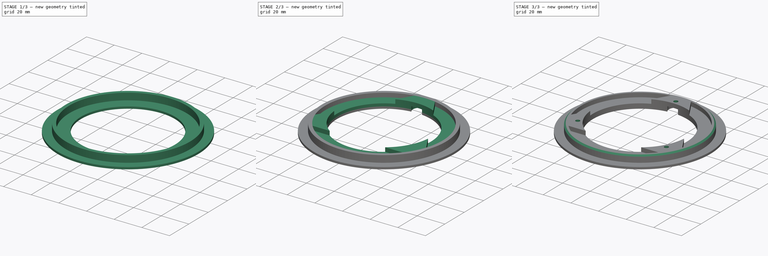
[diagram: build sequence overview — one tinted view per stage of 3, left to right]
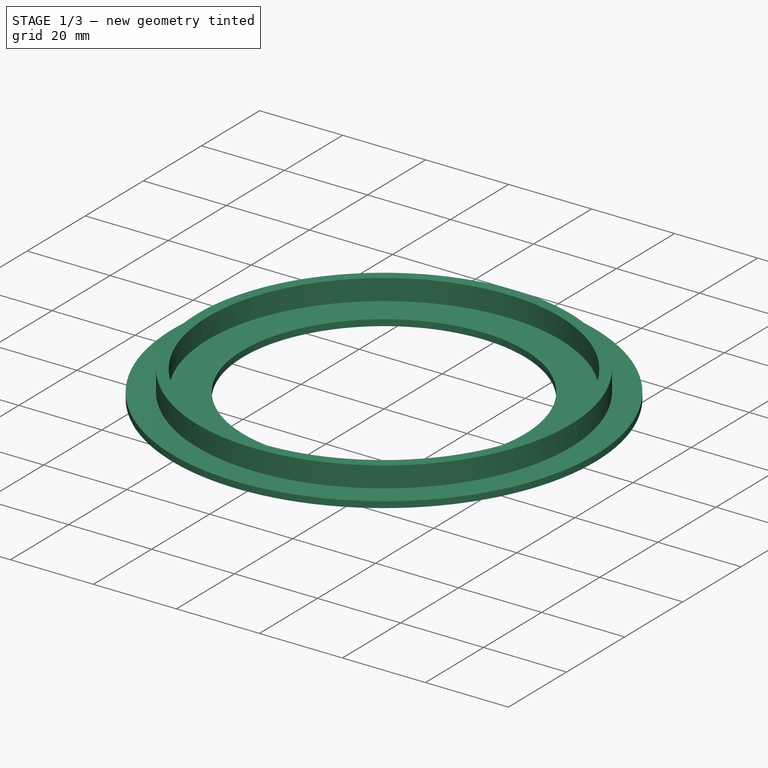
[diagram: stage 1 of 3 — iso view after this stage's code; geometry added in this stage tinted green]
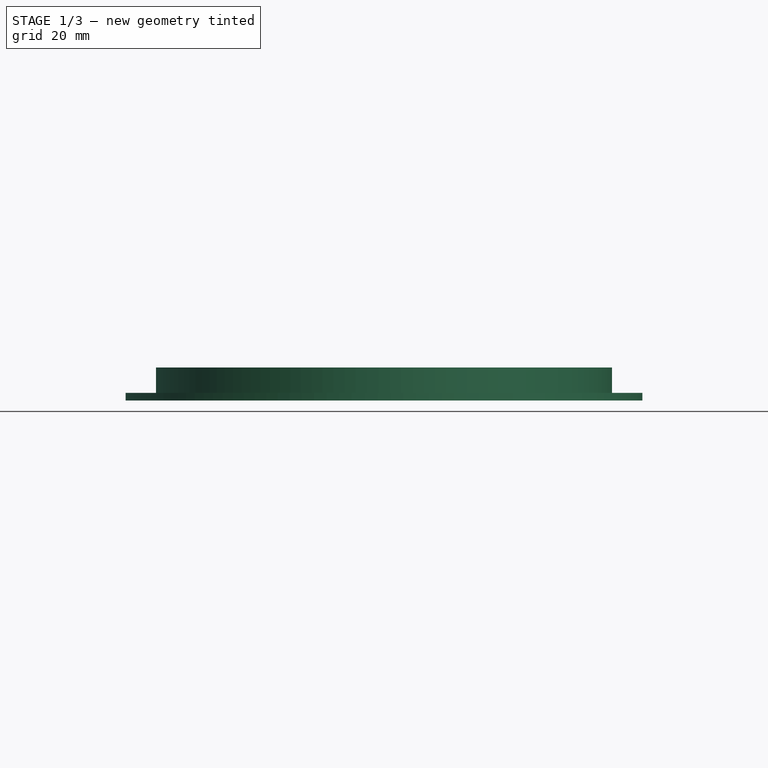
[diagram: stage 1 of 3 — front view after this stage's code; geometry added in this stage tinted green]
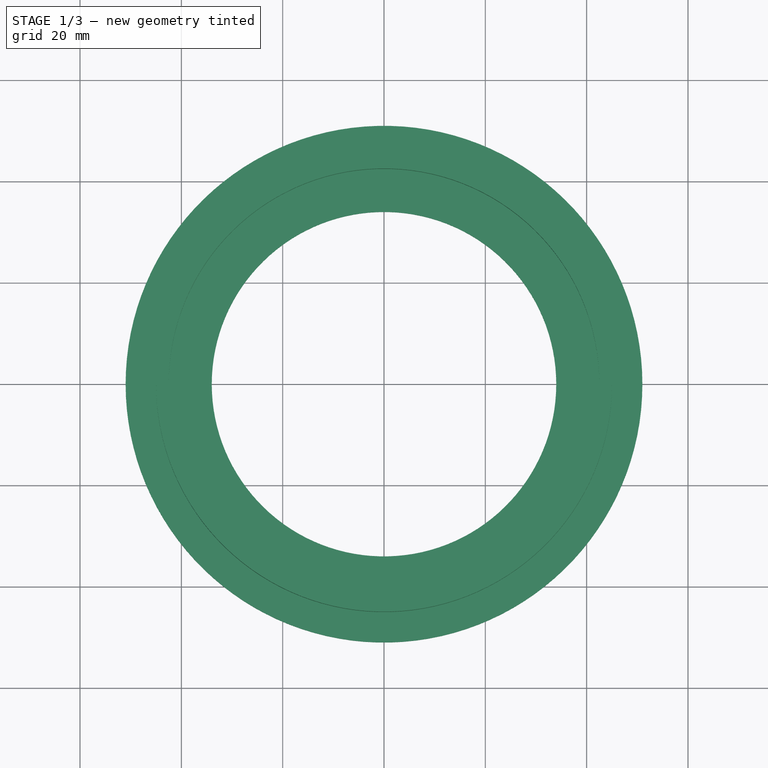
[diagram: stage 1 of 3 — top view after this stage's code; geometry added in this stage tinted green]
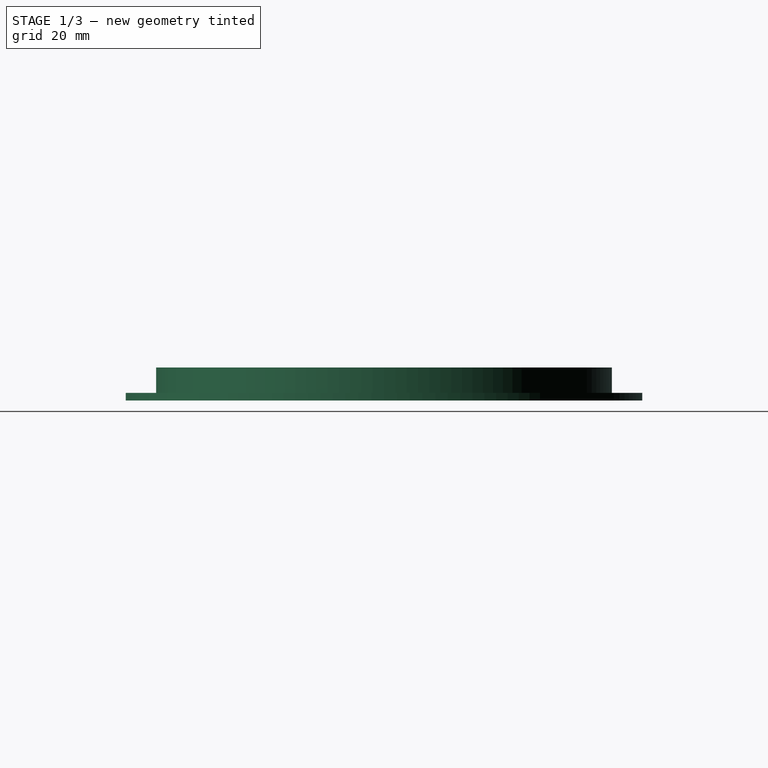
[diagram: stage 1 of 3 — right view after this stage's code; geometry added in this stage tinted green]
FCSTD DOCUMENT  (FreeCAD 0.19R24276 (Git))
Label: Mobile_connection_bottom_part_N1_add_V1
License: All rights reserved
LicenseURL: http://en.wikipedia.org/wiki/All_rights_reserved
objects: Sketcher::SketchObject×6, PartDesign::Pad×4, PartDesign::Pocket×2, PartDesign::Chamfer×1, PartDesign::Body×1
note: 21 computed .brp shape members not serialized (recipe doc carries the construction recipe); baked Part::Feature solids carry a one-line shape summary decoded from their .brp

FEATURE [Sketcher::SketchObject] Sketch
  FullyConstrained = true
  MapMode = 5
  Support = -> [XY_Plane]
  sketch-geometry (2):
    g0: Circle CenterX=0 CenterY=0 CenterZ=0 NormalX=0 NormalY=0 NormalZ=1 AngleXU=0 Radius=34
    g1: Circle CenterX=0 CenterY=0 CenterZ=0 NormalX=0 NormalY=0 NormalZ=1 AngleXU=0 Radius=51
  constraints (4):
    c: Coincident(g0,g-1)
    c: Diameter(g0) = 68
    c: Coincident(g1,g0)
    c: Diameter(g1) = 102
FEATURE [PartDesign::Pad] Pad
  Direction = (1,1,1)
  Length = 1.5
  Length2 = 100
  Profile = -> Sketch
  Type = 0
FEATURE [Sketcher::SketchObject] Sketch001
  FullyConstrained = true
  MapMode = 5
  Placement = pos=(0,0,1.5) rot=(0,0,1;0rad)
  Support = -> [Pad]
  sketch-geometry (2):
    g0: Circle CenterX=0 CenterY=0 CenterZ=0 NormalX=0 NormalY=0 NormalZ=1 AngleXU=0 Radius=45
    g1: Circle CenterX=0 CenterY=0 CenterZ=0 NormalX=0 NormalY=0 NormalZ=1 AngleXU=0 Radius=42.5
  constraints (4):
    c: Coincident(g0,g-1)
    c: Diameter(g0) = 90
    c: Coincident(g1,g0)
    c: Diameter(g1) = 85
FEATURE [PartDesign::Pad] Pad001
  BaseFeature = -> Pad
  Direction = (1,1,1)
  Length = 5
  Length2 = 100
  Profile = -> Sketch001
  Type = 0
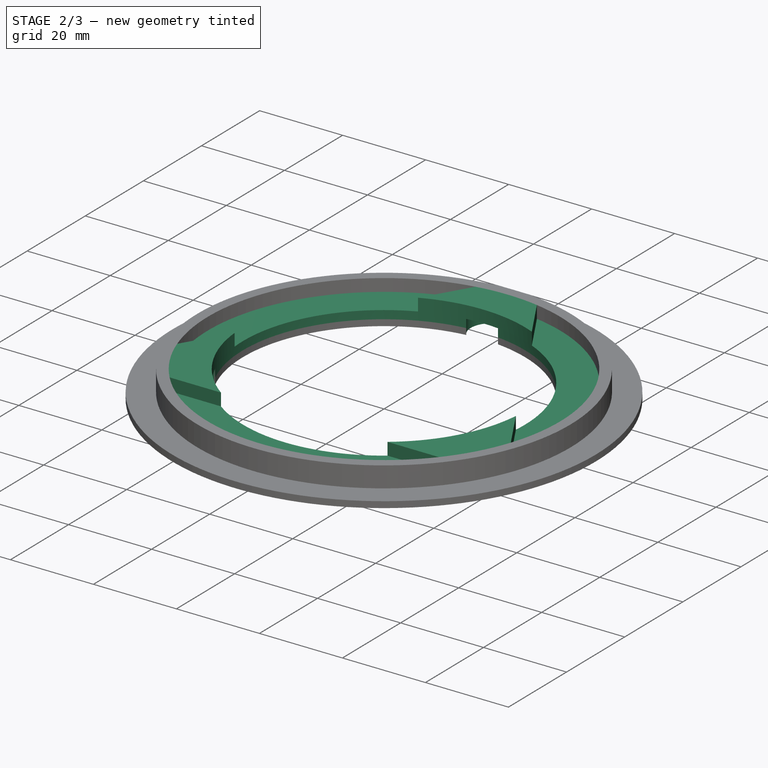
[diagram: stage 2 of 3 — iso view after this stage's code; geometry added in this stage tinted green]
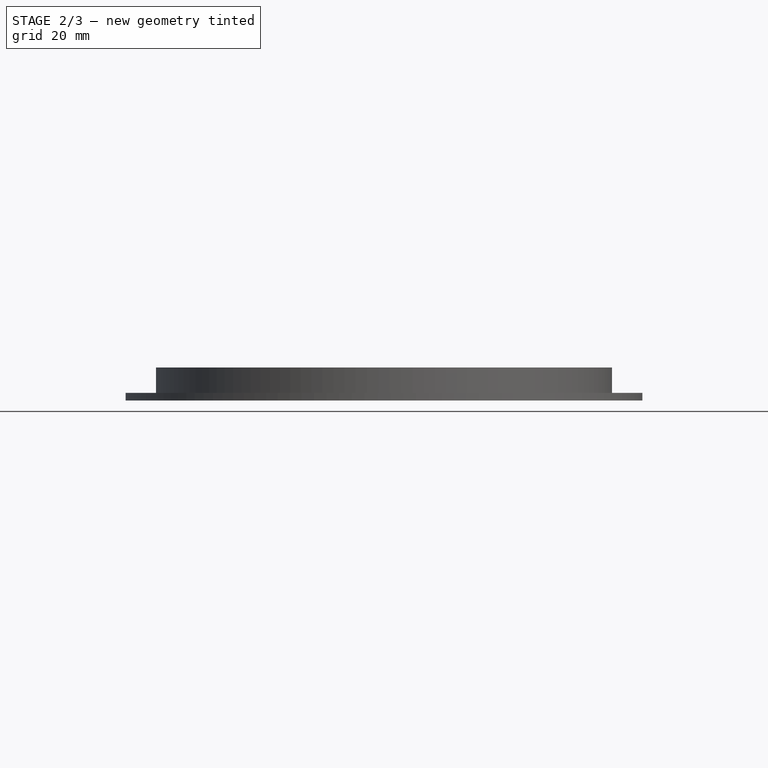
[diagram: stage 2 of 3 — front view after this stage's code; geometry added in this stage tinted green]
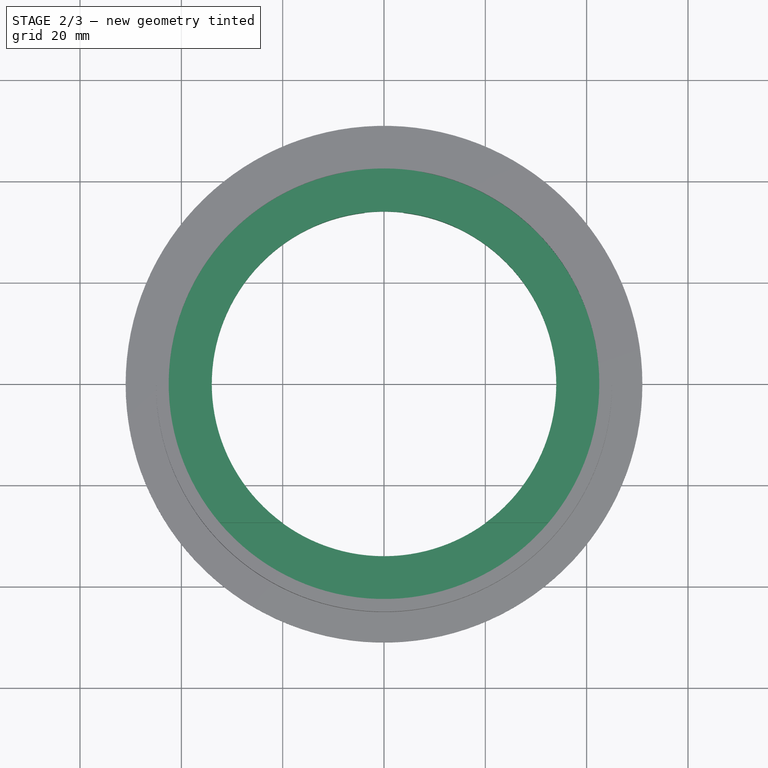
[diagram: stage 2 of 3 — top view after this stage's code; geometry added in this stage tinted green]
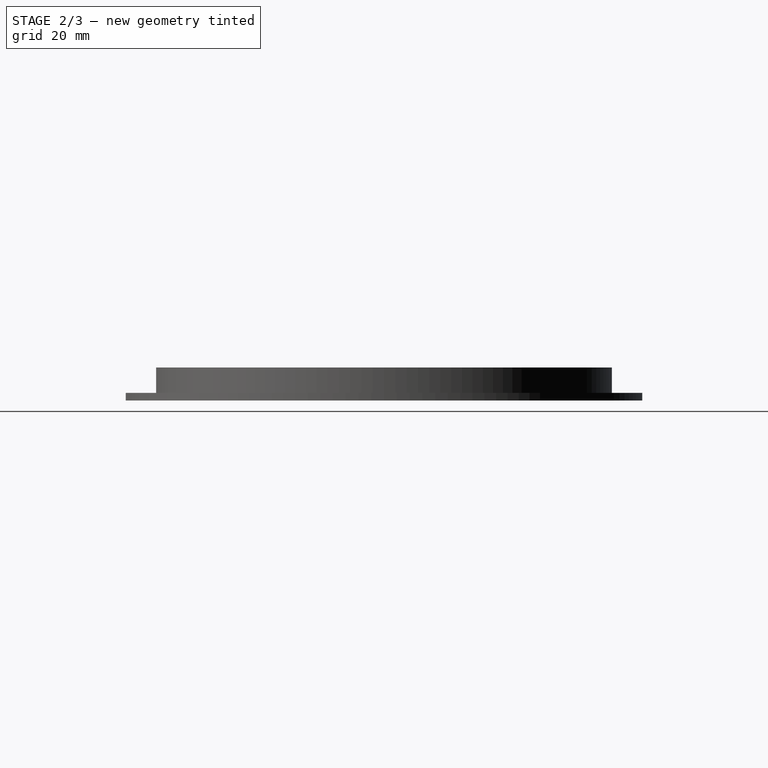
[diagram: stage 2 of 3 — right view after this stage's code; geometry added in this stage tinted green]
FEATURE [Sketcher::SketchObject] Sketch002
  FullyConstrained = true
  MapMode = 5
  Placement = pos=(0,0,1.5) rot=(0,0,1;0rad)
  Support = -> [Pad001]
  sketch-geometry (2):
    g0: Circle CenterX=0 CenterY=0 CenterZ=0 NormalX=0 NormalY=0 NormalZ=1 AngleXU=0 Radius=34
    g1: Circle CenterX=0 CenterY=0 CenterZ=0 NormalX=0 NormalY=0 NormalZ=1 AngleXU=0 Radius=43
  constraints (4):
    c: Coincident(g0,g-1)
    c: Diameter(g0) = 68
    c: Coincident(g1,g0)
    c: Diameter(g1) = 86
FEATURE [PartDesign::Pad] Pad002
  BaseFeature = -> Pad001
  Direction = (1,1,1)
  Length = 2
  Length2 = 100
  Profile = -> Sketch002
  Type = 0
FEATURE [Sketcher::SketchObject] Sketch003
  FullyConstrained = true
  MapMode = 5
  Placement = pos=(0,0,3.5) rot=(0,0,1;0rad)
  Support = -> [Pad002]
  sketch-geometry (7):
    g0: LineSegment StartX=32.0429 StartY=-18.5 StartZ=0 EndX=3.52287e-11 EndY=37 EndZ=0
    g1: LineSegment StartX=3.52287e-11 StartY=37 StartZ=0 EndX=-32.0429 EndY=-18.5 EndZ=0
    g2: LineSegment StartX=-32.0429 StartY=-18.5 StartZ=0 EndX=32.0429 EndY=-18.5 EndZ=0
    g3: Circle CenterX=0 CenterY=0 CenterZ=0 NormalX=0 NormalY=0 NormalZ=1 AngleXU=0 Radius=37
    g4: Circle CenterX=3.52287e-11 CenterY=37 CenterZ=0 NormalX=0 NormalY=0 NormalZ=1 AngleXU=0 Radius=1.5
    g5: Circle CenterX=32.0429 CenterY=-18.5 CenterZ=0 NormalX=0 NormalY=0 NormalZ=1 AngleXU=0 Radius=1.5
    g6: Circle CenterX=-32.0429 CenterY=-18.5 CenterZ=0 NormalX=0 NormalY=0 NormalZ=1 AngleXU=0 Radius=1.5
  constraints (17):
    c: Coincident(g0,g1)
    c: Coincident(g1,g2)
    c: Coincident(g2,g0)
    c: Equal(g0,g1)
    c: Equal(g0,g2)
    c: PointOnObject(g0,g3)
    c: PointOnObject(g1,g3)
    c: PointOnObject(g2,g3)
    c: Parallel(g2,g-1)
    c: Coincident(g3,g-1)
    c: Diameter(g3) = 74
    c: Coincident(g4,g0)
    c: Coincident(g5,g0)
    c: Coincident(g6,g1)
    c: Diameter(g6) = 3
    c: Equal(g6,g4)
    c: Equal(g6,g5)
FEATURE [Sketcher::SketchObject] Sketch004
  FullyConstrained = true
  MapMode = 5
  Placement = pos=(0,0,0) rot=(1,0,0;3.14159rad)
  sketch-geometry (7):
    g0: LineSegment StartX=1.08358e-11 StartY=-37 StartZ=0 EndX=32.0429 EndY=18.5 EndZ=0
    g1: LineSegment StartX=32.0429 StartY=18.5 StartZ=0 EndX=-32.0429 EndY=18.5 EndZ=0
    g2: LineSegment StartX=-32.0429 StartY=18.5 StartZ=0 EndX=1.08358e-11 EndY=-37 EndZ=0
    g3: Circle CenterX=0 CenterY=0 CenterZ=0 NormalX=0 NormalY=0 NormalZ=1 AngleXU=0 Radius=37
    g4: Circle CenterX=32.0429 CenterY=18.5 CenterZ=0 NormalX=0 NormalY=0 NormalZ=1 AngleXU=0 Radius=5
    g5: Circle CenterX=-32.0429 CenterY=18.5 CenterZ=0 NormalX=0 NormalY=0 NormalZ=1 AngleXU=0 Radius=5
    g6: Circle CenterX=1.08358e-11 CenterY=-37 CenterZ=0 NormalX=0 NormalY=0 NormalZ=1 AngleXU=0 Radius=5
  constraints (17):
    c: Coincident(g0,g1)
    c: Coincident(g1,g2)
    c: Coincident(g2,g0)
    c: Equal(g0,g1)
    c: Equal(g0,g2)
    c: PointOnObject(g0,g3)
    c: PointOnObject(g1,g3)
    c: PointOnObject(g2,g3)
    c: Parallel(g1,g-1)
    c: Coincident(g3,g-1)
    c: Diameter(g3) = 74
    c: Coincident(g4,g0)
    c: Coincident(g5,g1)
    c: Coincident(g6,g0)
    c: Diameter(g4) = 10
    c: Diameter(g6) = 10
    c: Diameter(g5) = 10
FEATURE [PartDesign::Pocket] Pocket001
  BaseFeature = -> Pad002
  Length = 3.5
  Length2 = 100
  Profile = -> Sketch004
  Type = 0
FEATURE [Sketcher::SketchObject] Sketch005
  AttachmentOffset = pos=(0,0,-3) rot=(0,0,1;0rad)
  FullyConstrained = false
  MapMode = 5
  Placement = pos=(0,0,3.5) rot=(0,0,1;0rad)
  Support = -> [Pocket001]
  sketch-geometry (17):
    g0: ArcOfCircle CenterX=0 CenterY=0 CenterZ=0 NormalX=0 NormalY=0 NormalZ=1 AngleXU=0 Radius=34 StartAngle=1.14994 EndAngle=1.98293
    g1: ArcOfCircle CenterX=0 CenterY=0 CenterZ=0 NormalX=0 NormalY=0 NormalZ=1 AngleXU=0 Radius=42.5 StartAngle=3.47095 EndAngle=3.84397
    g2: LineSegment StartX=-32.4407 StartY=-27.4563 StartZ=0 EndX=-20.0537 EndY=-27.4563 EndZ=0
    g3: LineSegment StartX=40.2046 StartY=-13.7784 StartZ=0 EndX=33.8684 EndY=-2.98827 EndZ=0
    g4: LineSegment StartX=-7.26879 StartY=41.8738 StartZ=0 EndX=-13.6193 EndY=31.1531 EndZ=0
    g5: Circle CenterX=0 CenterY=0 CenterZ=0 NormalX=0 NormalY=0 NormalZ=1 AngleXU=0 Radius=55
    g6: ArcOfCircle CenterX=0 CenterY=0 CenterZ=0 NormalX=0 NormalY=0 NormalZ=1 AngleXU=0 Radius=34 StartAngle=3.23069 EndAngle=4.08156
    g7: ArcOfCircle CenterX=0 CenterY=0 CenterZ=0 NormalX=0 NormalY=0 NormalZ=1 AngleXU=0 Radius=34 StartAngle=5.34322 EndAngle=6.19518
    g8: LineSegment StartX=-33.8651 StartY=-3.02517 StartZ=0 EndX=-40.2157 EndY=-13.7459 EndZ=0
    g9: LineSegment StartX=20.0537 StartY=-27.4563 StartZ=0 EndX=32.4407 EndY=-27.4563 EndZ=0
    g10: LineSegment StartX=13.8906 StartY=31.0331 StartZ=0 EndX=7.55444 EndY=41.8232 EndZ=0
    g11: ArcOfCircle CenterX=0 CenterY=0 CenterZ=0 NormalX=0 NormalY=0 NormalZ=1 AngleXU=0 Radius=42.5 StartAngle=5.58081 EndAngle=5.95302
    g12: ArcOfCircle CenterX=0 CenterY=0 CenterZ=0 NormalX=0 NormalY=0 NormalZ=1 AngleXU=0 Radius=42.5 StartAngle=1.3921 EndAngle=1.74267
    g13: LineSegment StartX=-61.1649 StartY=-3 StartZ=0 EndX=-54.9181 EndY=-3 EndZ=0
    g14: Circle CenterX=0 CenterY=0 CenterZ=0 NormalX=0 NormalY=0 NormalZ=1 AngleXU=0 Radius=34
    g15: LineSegment StartX=-33.8674 StartY=-3 StartZ=0 EndX=33.8674 EndY=-3 EndZ=0
    g16: LineSegment StartX=54.9181 StartY=-3 StartZ=0 EndX=72.0753 EndY=-3 EndZ=0
  constraints (42):
    c: Coincident(g0,g-1)
    c: Diameter(g0) = 68
    c: Coincident(g1,g0)
    c: Diameter(g1) = 85
    c: Coincident(g5,g0)
    c: Parallel(g2,g-1)
    c: Diameter(g5) = 110
    c: Equal(g0,g6)
    c: Coincident(g0,g6)
    c: Equal(g6,g7)
    c: Coincident(g6,g7)
    c: Coincident(g4,g0)
    c: Coincident(g8,g6)
    c: Tangent(g4,g8)
    c: Coincident(g2,g6)
    c: Coincident(g9,g7)
    c: Tangent(g2,g9)
    c: PointOnObject(g3,g1)
    c: Coincident(g3,g7)
    c: Coincident(g10,g0)
    c: Tangent(g3,g10)
    c: PointOnObject(g10,g1)
    c: Coincident(g1,g8)
    c: Coincident(g12,g4)
    c: Equal(g1,g11)
    c: Coincident(g1,g2)
    c: Coincident(g11,g9)
    c: Coincident(g1,g11)
    c: Equal(g11,g12)
    c: PointOnObject(g11,g3)
    c: PointOnObject(g12,g10)
    c: Coincident(g11,g12)
    c: Horizontal(g13)
    c: DistanceY(g13,g0) = 3
    c: Coincident(g14,g0)
    c: Diameter(g14) = 68
    c: PointOnObject(g13,g5)
    c: PointOnObject(g15,g14)
    c: Tangent(g13,g15)
    c: PointOnObject(g15,g14)
    c: PointOnObject(g16,g5)
    c: Tangent(g15,g16)
FEATURE [PartDesign::Pad] Pad003
  BaseFeature = -> Pocket001
  Direction = (1,1,1)
  Length = 3
  Length2 = 100
  Profile = -> Sketch005
  Type = 0
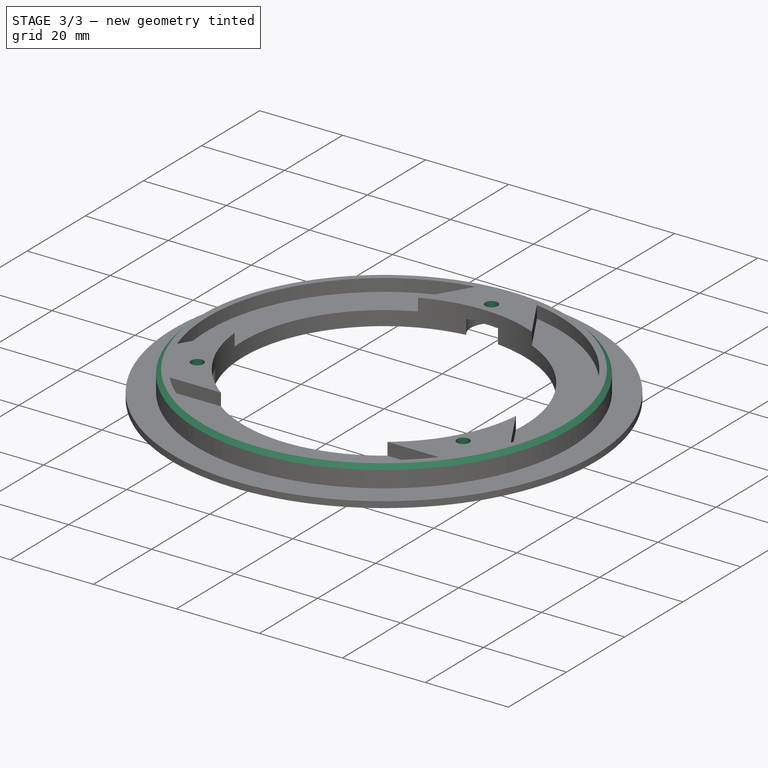
[diagram: stage 3 of 3 — iso view after this stage's code; geometry added in this stage tinted green]
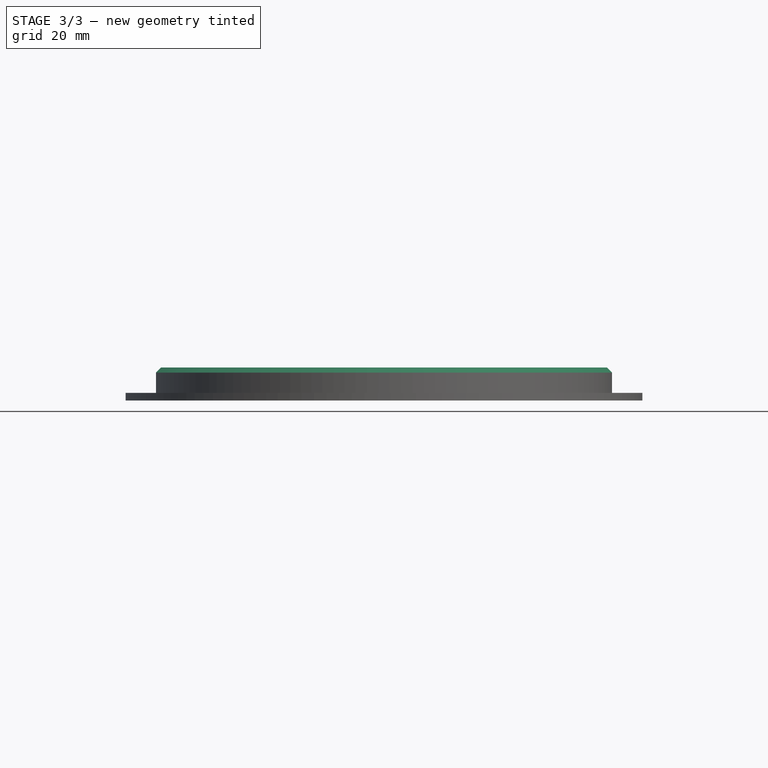
[diagram: stage 3 of 3 — front view after this stage's code; geometry added in this stage tinted green]
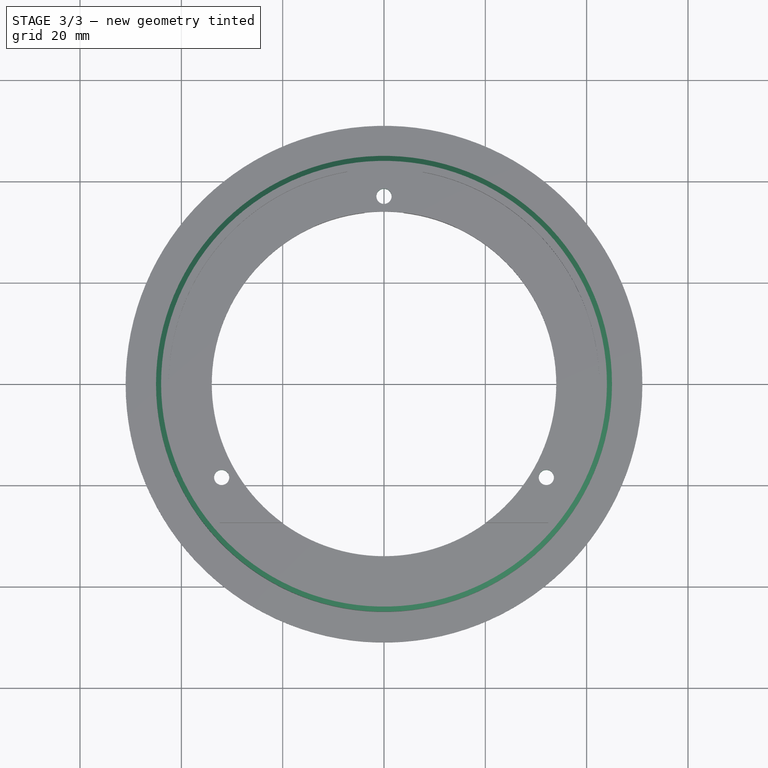
[diagram: stage 3 of 3 — top view after this stage's code; geometry added in this stage tinted green]
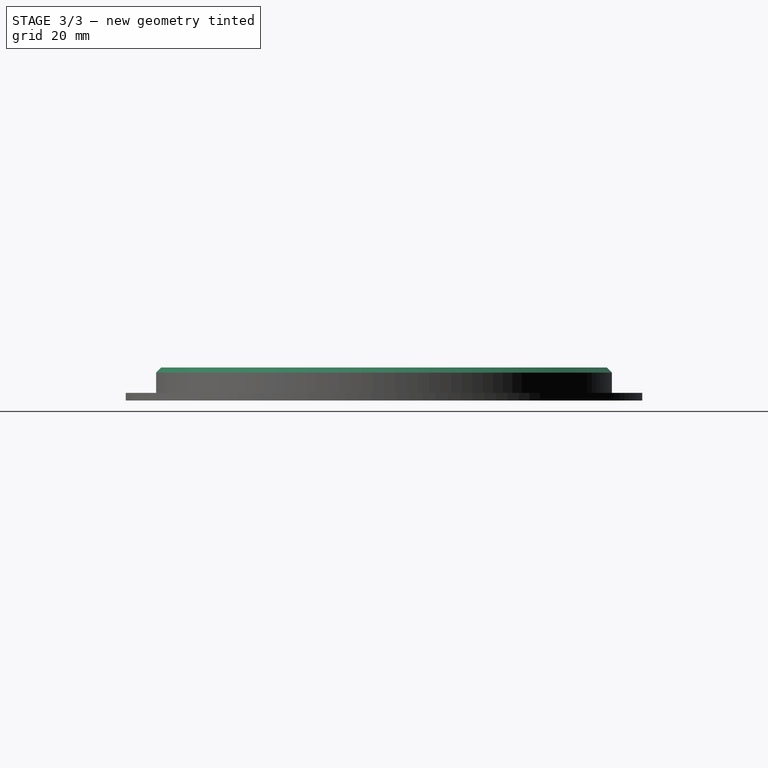
[diagram: stage 3 of 3 — right view after this stage's code; geometry added in this stage tinted green]
FEATURE [PartDesign::Pocket] Pocket
  BaseFeature = -> Pad003
  Length = 5
  Length2 = 100
  Midplane = true
  Profile = -> Sketch003
  Type = 1
FEATURE [PartDesign::Chamfer] Chamfer
  Angle = 45
  Base = -> Pocket [Edge39]
  BaseFeature = -> Pocket
  ChamferType = 0
  FlipDirection = false
  Size = 1
  Size2 = 1
  SupportTransform = false
FEATURE [PartDesign::Body] Body
  Group = -> [Sketch,Pad,Sketch001,Pad001,Sketch002,Pad002,Sketch004,Pocket001,Sketch005,Sketch003,Pad003,Pocket,Chamfer]
  Origin = -> Origin
  Tip = -> Chamfer
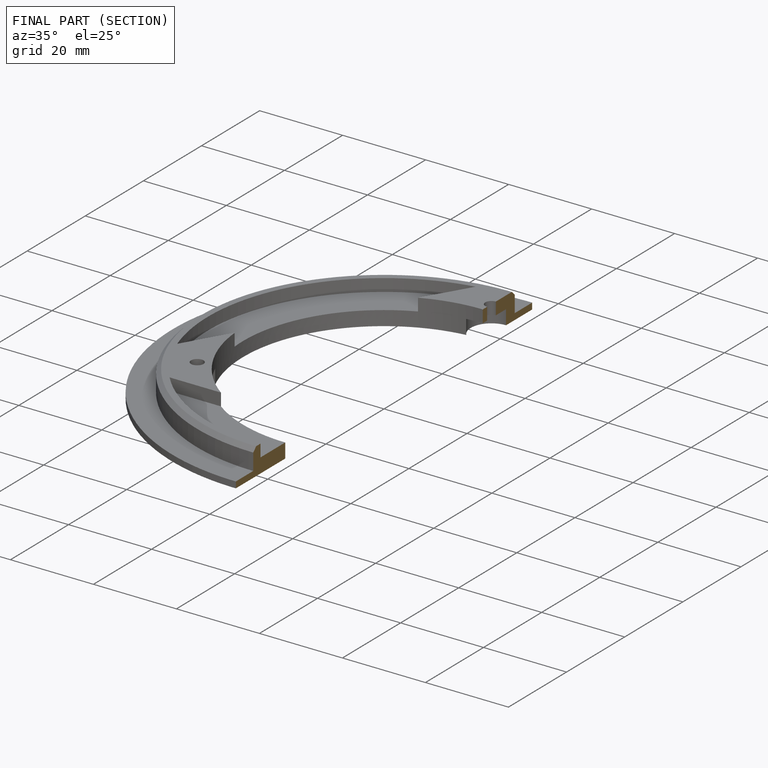
[diagram: finished part — half-section view (interior)]
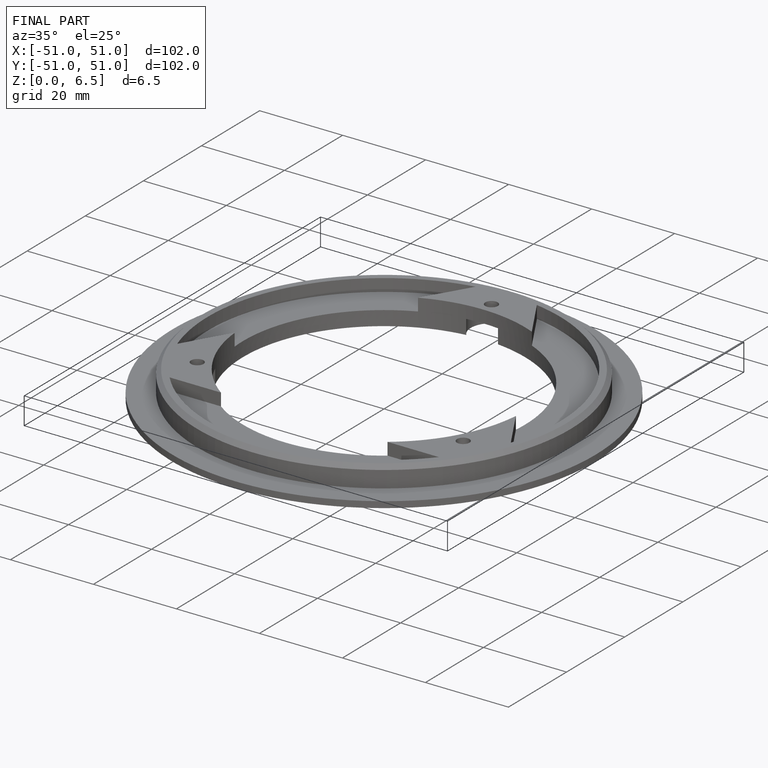
[diagram: finished part — iso view with bounding-box wireframe]
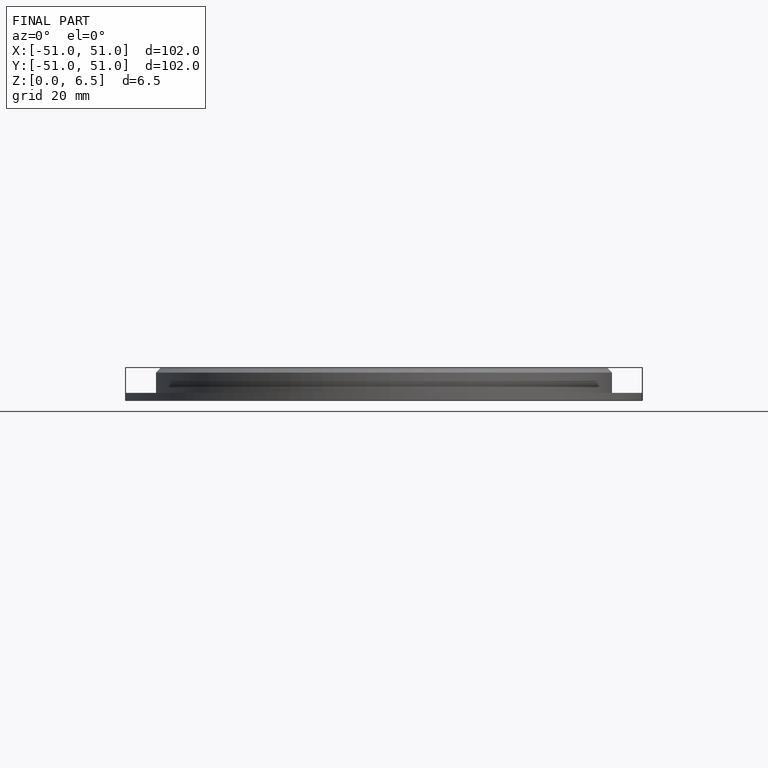
[diagram: finished part — front view with bounding-box wireframe]
